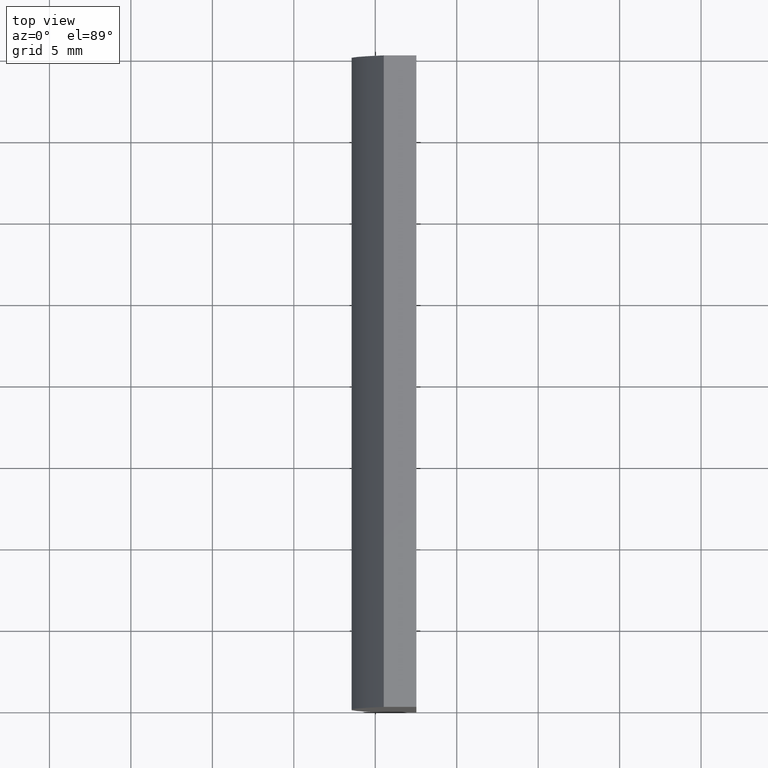
[diagram: clean part render]
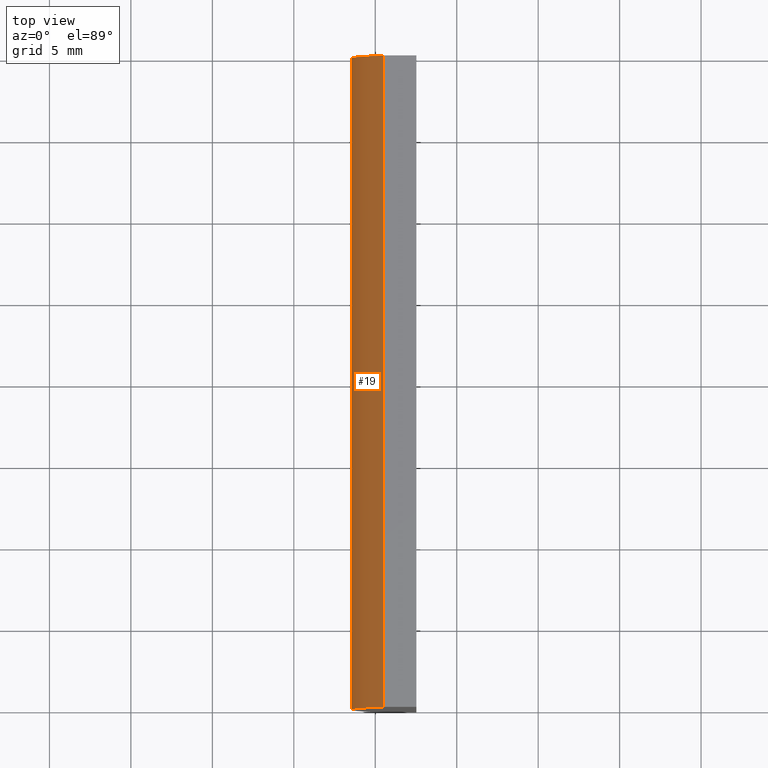
[diagram: same view with one face highlighted and labeled with its STEP entity id]
A machine part, top view. The second image highlights one B-rep face of the part: STEP entity #19.
In plain terms, the highlighted cylindrical surface (partial cylindrical patch) has radius 25.85 mm, axis along (-0, -1, -0).
Its self-contained STEP definition (entity closure, byte-faithful):
#6 = VERTEX_POINT ( 'NONE', #73 ) ;
#8 = DIRECTION ( 'NONE',  ( -0.0000000000000000000, -1.000000000000000000, -0.0000000000000000000 ) ) ;
#14 = AXIS2_PLACEMENT_3D ( 'NONE', #95, #116, #91 ) ;
#19 = ADVANCED_FACE ( 'NONE', ( #168 ), #104, .T. ) ;
#24 = LINE ( 'NONE', #192, #100 ) ;
#28 = VERTEX_POINT ( 'NONE', #111 ) ;
#30 = CARTESIAN_POINT ( 'NONE',  ( -19.48221373003152100, 40.00000000000000000, 10.00000000000000000 ) ) ;
#37 = EDGE_CURVE ( 'NONE', #6, #41, #24, .T. ) ;
#41 = VERTEX_POINT ( 'NONE', #109 ) ;
#45 = CIRCLE ( 'NONE', #204, 25.85000000000000500 ) ;
#51 = EDGE_CURVE ( 'NONE', #6, #197, #45, .T. ) ;
#55 = DIRECTION ( 'NONE',  ( 0.0000000000000000000, 0.0000000000000000000, 1.000000000000000000 ) ) ;
#68 = ORIENTED_EDGE ( 'NONE', *, *, #157, .T. ) ;
#72 = EDGE_LOOP ( 'NONE', ( #68, #180, #163, #130 ) ) ;
#73 = CARTESIAN_POINT ( 'NONE',  ( -19.48221373003152100, 40.00000000000000000, -10.00000000000000000 ) ) ;
#76 = VECTOR ( 'NONE', #8, 1000.000000000000000 ) ;
#91 = DIRECTION ( 'NONE',  ( 0.0000000000000000000, 0.0000000000000000000, -1.000000000000000000 ) ) ;
#95 = CARTESIAN_POINT ( 'NONE',  ( 4.355204334851265500, 40.00000000000000000, 4.286263797015675000E-017 ) ) ;
#99 = DIRECTION ( 'NONE',  ( -0.0000000000000000000, -1.000000000000000000, -0.0000000000000000000 ) ) ;
#100 = VECTOR ( 'NONE', #99, 1000.000000000000000 ) ;
#103 = DIRECTION ( 'NONE',  ( 0.0000000000000000000, 1.000000000000000000, 0.0000000000000000000 ) ) ;
#104 = CYLINDRICAL_SURFACE ( 'NONE', #14, 25.85000000000000500 ) ;
#107 = CARTESIAN_POINT ( 'NONE',  ( 4.355204334851265500, 0.0000000000000000000, 4.286263797015675000E-017 ) ) ;
#109 = CARTESIAN_POINT ( 'NONE',  ( -19.48221373003152100, 0.0000000000000000000, -10.00000000000000000 ) ) ;
#111 = CARTESIAN_POINT ( 'NONE',  ( -19.48221373003152100, 0.0000000000000000000, 10.00000000000000000 ) ) ;
#116 = DIRECTION ( 'NONE',  ( -0.0000000000000000000, -1.000000000000000000, -0.0000000000000000000 ) ) ;
#130 = ORIENTED_EDGE ( 'NONE', *, *, #37, .T. ) ;
#131 = DIRECTION ( 'NONE',  ( 0.0000000000000000000, 0.0000000000000000000, 1.000000000000000000 ) ) ;
#133 = CIRCLE ( 'NONE', #182, 25.85000000000000500 ) ;
#150 = CARTESIAN_POINT ( 'NONE',  ( -19.48221373003152100, 40.00000000000000000, 10.00000000000000000 ) ) ;
#157 = EDGE_CURVE ( 'NONE', #41, #28, #133, .T. ) ;
#163 = ORIENTED_EDGE ( 'NONE', *, *, #51, .F. ) ;
#167 = EDGE_CURVE ( 'NONE', #197, #28, #190, .T. ) ;
#168 = FACE_OUTER_BOUND ( 'NONE', #72, .T. ) ;
#170 = DIRECTION ( 'NONE',  ( 0.0000000000000000000, 1.000000000000000000, 0.0000000000000000000 ) ) ;
#180 = ORIENTED_EDGE ( 'NONE', *, *, #167, .F. ) ;
#182 = AXIS2_PLACEMENT_3D ( 'NONE', #107, #103, #131 ) ;
#190 = LINE ( 'NONE', #150, #76 ) ;
#192 = CARTESIAN_POINT ( 'NONE',  ( -19.48221373003152100, 40.00000000000000000, -10.00000000000000000 ) ) ;
#197 = VERTEX_POINT ( 'NONE', #30 ) ;
#203 = CARTESIAN_POINT ( 'NONE',  ( 4.355204334851265500, 40.00000000000000000, 4.286263797015675000E-017 ) ) ;
#204 = AXIS2_PLACEMENT_3D ( 'NONE', #203, #170, #55 ) ;